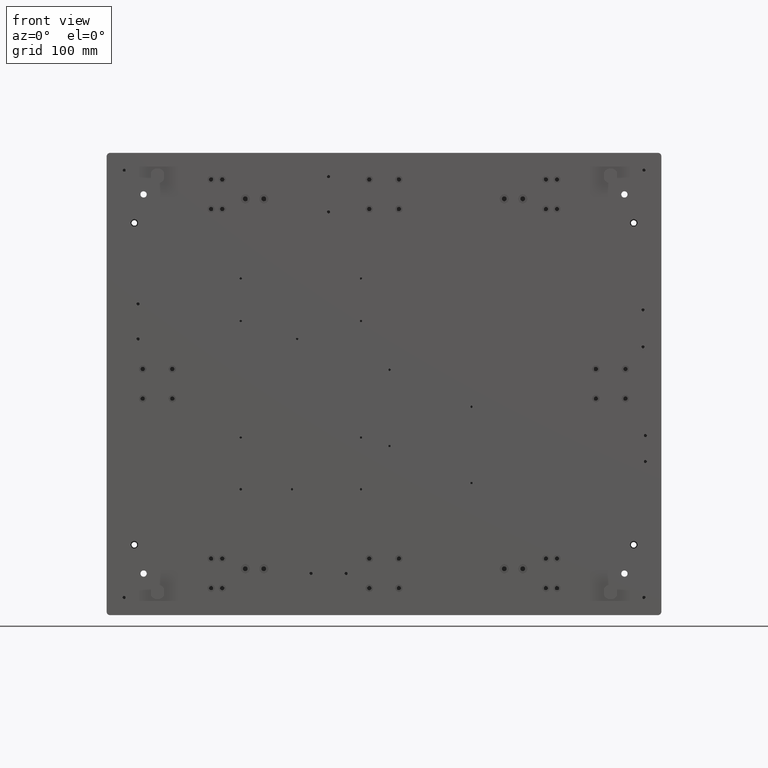
[diagram: clean part render]
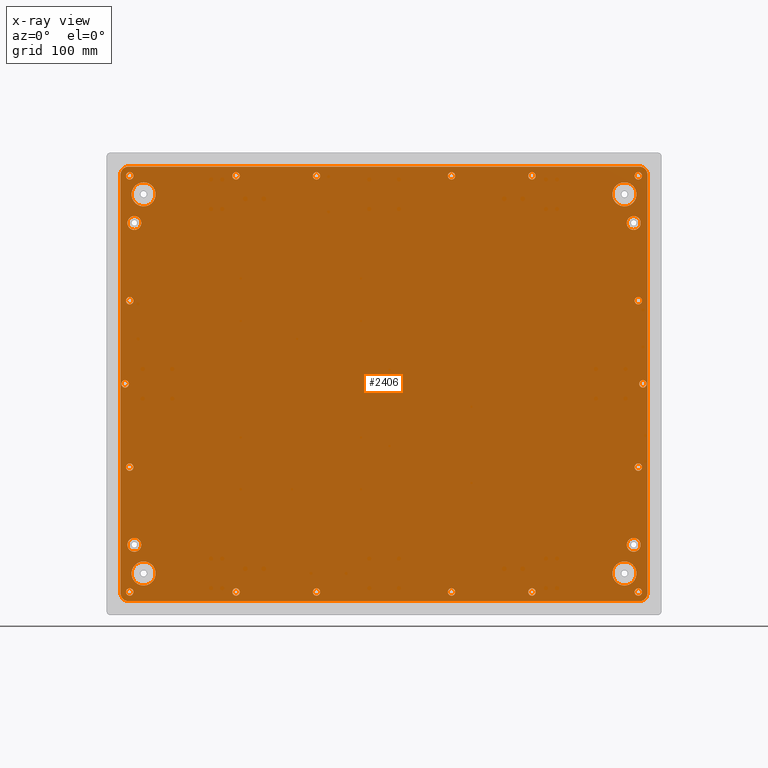
[diagram: x-ray — body ghosted, one internal face saturated and labeled with its STEP entity id]
A machine part, front view, then the same camera in x-ray: the body is ghosted and one INTERNAL B-rep face — a face not visible from any outside direction — is saturated and labeled: STEP entity #2406.
In plain terms, the highlighted planar face has unit normal (0, 1, 0).
Its self-contained STEP definition (entity closure, byte-faithful):
#20 = EDGE_CURVE ( 'NONE', #4406, #4406, #38545, .T. ) ;
#292 = DIRECTION ( 'NONE',  ( 0.000000000000000000, 0.000000000000000000, 1.000000000000000000 ) ) ;
#304 = ORIENTED_EDGE ( 'NONE', *, *, #29205, .F. ) ;
#337 = CARTESIAN_POINT ( 'NONE',  ( 279.4512755979887402, 100.1371811005066803, 639.0000000000000000 ) ) ;
#345 = VERTEX_POINT ( 'NONE', #38688 ) ;
#633 = CARTESIAN_POINT ( 'NONE',  ( 264.4512755979887402, 100.1371811005066803, 763.0000000000002274 ) ) ;
#658 = EDGE_LOOP ( 'NONE', ( #18719 ) ) ;
#799 = CIRCLE ( 'NONE', #19146, 4.000000000000003553 ) ;
#955 = ORIENTED_EDGE ( 'NONE', *, *, #22308, .F. ) ;
#1581 = FACE_BOUND ( 'NONE', #30814, .T. ) ;
#1589 = EDGE_CURVE ( 'NONE', #13353, #13353, #15249, .T. ) ;
#1866 = VERTEX_POINT ( 'NONE', #19686 ) ;
#1921 = EDGE_CURVE ( 'NONE', #11528, #11528, #22244, .T. ) ;
#1970 = EDGE_CURVE ( 'NONE', #26587, #26587, #14082, .T. ) ;
#1980 = FACE_BOUND ( 'NONE', #27510, .T. ) ;
#2161 = AXIS2_PLACEMENT_3D ( 'NONE', #26964, #8751, #33076 ) ;
#2307 = AXIS2_PLACEMENT_3D ( 'NONE', #15782, #27850, #36173 ) ;
#2319 = CIRCLE ( 'NONE', #22567, 13.00000000000001066 ) ;
#2406 = ADVANCED_FACE ( 'NONE', ( #7336, #35039, #19415, #8134, #31673, #31479, #4348, #37616, #16449, #13479, #22581, #1980, #25554, #31873, #1581, #28704, #7536, #4738, #10499, #7932, #19605, #22779, #25954, #16645, #25766, #14078, #38021 ), #38220, .F. ) ;
#2647 = DIRECTION ( 'NONE',  ( 0.000000000000000000, 0.000000000000000000, 1.000000000000000000 ) ) ;
#2733 = EDGE_CURVE ( 'NONE', #19870, #19870, #15740, .T. ) ;
#2846 = DIRECTION ( 'NONE',  ( 0.000000000000000000, -1.000000000000000000, 0.000000000000000000 ) ) ;
#2868 = DIRECTION ( 'NONE',  ( 0.000000000000000000, -1.000000000000000000, 0.000000000000000000 ) ) ;
#3297 = DIRECTION ( 'NONE',  ( 0.000000000000000000, 0.000000000000000000, 1.000000000000000000 ) ) ;
#3332 = DIRECTION ( 'NONE',  ( 0.000000000000000000, 0.000000000000000000, 1.000000000000000000 ) ) ;
#3558 = EDGE_CURVE ( 'NONE', #26773, #26773, #25265, .T. ) ;
#4115 = DIRECTION ( 'NONE',  ( 0.000000000000000000, 0.000000000000000000, 1.000000000000000000 ) ) ;
#4252 = EDGE_CURVE ( 'NONE', #24981, #24981, #14550, .T. ) ;
#4348 = FACE_BOUND ( 'NONE', #21579, .T. ) ;
#4406 = VERTEX_POINT ( 'NONE', #25425 ) ;
#4449 = ORIENTED_EDGE ( 'NONE', *, *, #1589, .F. ) ;
#4498 = DIRECTION ( 'NONE',  ( 0.000000000000000000, 0.000000000000000000, 1.000000000000000000 ) ) ;
#4516 = EDGE_LOOP ( 'NONE', ( #16558 ) ) ;
#4548 = AXIS2_PLACEMENT_3D ( 'NONE', #35288, #26001, #23024 ) ;
#4574 = AXIS2_PLACEMENT_3D ( 'NONE', #28912, #37825, #7732 ) ;
#4699 = DIRECTION ( 'NONE',  ( 0.000000000000000000, -1.000000000000000000, 0.000000000000000000 ) ) ;
#4738 = FACE_BOUND ( 'NONE', #12816, .T. ) ;
#4930 = CIRCLE ( 'NONE', #20735, 4.000000000000003553 ) ;
#5123 = CIRCLE ( 'NONE', #38666, 7.499999999999951150 ) ;
#5170 = AXIS2_PLACEMENT_3D ( 'NONE', #13741, #20431, #11136 ) ;
#5479 = VERTEX_POINT ( 'NONE', #34947 ) ;
#5512 = DIRECTION ( 'NONE',  ( -1.000000000000000000, -0.000000000000000000, 0.000000000000000000 ) ) ;
#5532 = AXIS2_PLACEMENT_3D ( 'NONE', #23943, #11270, #7923 ) ;
#5536 = VERTEX_POINT ( 'NONE', #29690 ) ;
#5581 = CARTESIAN_POINT ( 'NONE',  ( 284.4512755979888539, 100.1371811005066803, 549.0000000000000000 ) ) ;
#5734 = EDGE_CURVE ( 'NONE', #34211, #19443, #21656, .T. ) ;
#5986 = EDGE_LOOP ( 'NONE', ( #38868 ) ) ;
#6003 = AXIS2_PLACEMENT_3D ( 'NONE', #36724, #2868, #292 ) ;
#6228 = DIRECTION ( 'NONE',  ( 0.000000000000000000, -1.000000000000000000, 0.000000000000000000 ) ) ;
#6229 = CIRCLE ( 'NONE', #13855, 8.800000000000029132 ) ;
#6385 = EDGE_LOOP ( 'NONE', ( #26109 ) ) ;
#6465 = DIRECTION ( 'NONE',  ( 0.000000000000000000, 0.000000000000000000, 1.000000000000000000 ) ) ;
#6635 = EDGE_CURVE ( 'NONE', #14855, #14855, #799, .T. ) ;
#6994 = EDGE_CURVE ( 'NONE', #5536, #5536, #15386, .T. ) ;
#7004 = EDGE_CURVE ( 'NONE', #24362, #24362, #10322, .T. ) ;
#7023 = DIRECTION ( 'NONE',  ( 0.000000000000000000, 0.000000000000000000, 1.000000000000000000 ) ) ;
#7161 = VERTEX_POINT ( 'NONE', #37451 ) ;
#7312 = CARTESIAN_POINT ( 'NONE',  ( -68.54872440201116035, 100.1371811005066803, 774.0000000000000000 ) ) ;
#7336 = FACE_OUTER_BOUND ( 'NONE', #34441, .T. ) ;
#7377 = DIRECTION ( 'NONE',  ( 0.000000000000000000, -1.000000000000000000, 0.000000000000000000 ) ) ;
#7437 = EDGE_LOOP ( 'NONE', ( #27326 ) ) ;
#7536 = FACE_BOUND ( 'NONE', #6385, .T. ) ;
#7593 = CARTESIAN_POINT ( 'NONE',  ( 280.6512755979887288, 100.1371811005066803, 771.2000000000000455 ) ) ;
#7732 = DIRECTION ( 'NONE',  ( 0.000000000000000000, -0.000000000000000000, 1.000000000000000000 ) ) ;
#7923 = DIRECTION ( 'NONE',  ( 0.000000000000000000, 0.000000000000000000, -1.000000000000000000 ) ) ;
#7932 = FACE_BOUND ( 'NONE', #29272, .T. ) ;
#8134 = FACE_BOUND ( 'NONE', #7437, .T. ) ;
#8226 = EDGE_LOOP ( 'NONE', ( #16764 ) ) ;
#8423 = CARTESIAN_POINT ( 'NONE',  ( 274.4512755979888539, 100.1371811005066803, 719.0000000000001137 ) ) ;
#8569 = DIRECTION ( 'NONE',  ( 0.000000000000000000, -0.000000000000000000, 1.000000000000000000 ) ) ;
#8678 = VERTEX_POINT ( 'NONE', #38976 ) ;
#8708 = VERTEX_POINT ( 'NONE', #24345 ) ;
#8751 = DIRECTION ( 'NONE',  ( 0.000000000000000000, -1.000000000000000000, 0.000000000000000000 ) ) ;
#8757 = AXIS2_PLACEMENT_3D ( 'NONE', #15333, #6228, #18308 ) ;
#8772 = EDGE_LOOP ( 'NONE', ( #4449 ) ) ;
#8817 = CARTESIAN_POINT ( 'NONE',  ( -270.5487244020112030, 100.1371811005066803, 455.0000000000001137 ) ) ;
#8948 = AXIS2_PLACEMENT_3D ( 'NONE', #13833, #37557, #34598 ) ;
#9004 = CARTESIAN_POINT ( 'NONE',  ( -271.7487244020111348, 100.1371811005066803, 310.0000000000001137 ) ) ;
#9249 = DIRECTION ( 'NONE',  ( 0.000000000000000000, -1.000000000000000000, 0.000000000000000000 ) ) ;
#9411 = AXIS2_PLACEMENT_3D ( 'NONE', #13434, #32229, #19956 ) ;
#9502 = CARTESIAN_POINT ( 'NONE',  ( -275.5487244020112030, 100.1371811005066803, 549.0000000000001137 ) ) ;
#9898 = CARTESIAN_POINT ( 'NONE',  ( 164.4512755979887686, 100.1371811005066803, 770.0000000000001137 ) ) ;
#10167 = VECTOR ( 'NONE', #10305, 1000.000000000000000 ) ;
#10277 = VERTEX_POINT ( 'NONE', #25528 ) ;
#10305 = DIRECTION ( 'NONE',  ( 1.000000000000000000, 0.000000000000000000, -0.000000000000000000 ) ) ;
#10322 = CIRCLE ( 'NONE', #36859, 4.000000000000003553 ) ;
#10331 = CARTESIAN_POINT ( 'NONE',  ( 274.4512755979888539, 100.1371811005066803, 726.5000000000000000 ) ) ;
#10414 = CIRCLE ( 'NONE', #6003, 4.000000000000003553 ) ;
#10499 = FACE_BOUND ( 'NONE', #28861, .T. ) ;
#10530 = DIRECTION ( 'NONE',  ( 0.000000000000000000, 0.000000000000000000, 1.000000000000000000 ) ) ;
#10807 = ORIENTED_EDGE ( 'NONE', *, *, #7004, .F. ) ;
#10955 = CARTESIAN_POINT ( 'NONE',  ( -280.5487244020111461, 100.1371811005066803, 771.2000000000000455 ) ) ;
#11125 = ORIENTED_EDGE ( 'NONE', *, *, #20, .F. ) ;
#11136 = DIRECTION ( 'NONE',  ( 0.000000000000000000, 0.000000000000000000, 1.000000000000000000 ) ) ;
#11270 = DIRECTION ( 'NONE',  ( 0.000000000000000000, 1.000000000000000000, 0.000000000000000000 ) ) ;
#11372 = AXIS2_PLACEMENT_3D ( 'NONE', #17902, #14932, #24046 ) ;
#11518 = EDGE_CURVE ( 'NONE', #37895, #25456, #35492, .T. ) ;
#11528 = VERTEX_POINT ( 'NONE', #16916 ) ;
#11746 = DIRECTION ( 'NONE',  ( 0.000000000000000000, -1.000000000000000000, 0.000000000000000000 ) ) ;
#11776 = EDGE_CURVE ( 'NONE', #24113, #24113, #2319, .T. ) ;
#11958 = CIRCLE ( 'NONE', #22074, 8.799999999999974065 ) ;
#12039 = ORIENTED_EDGE ( 'NONE', *, *, #24014, .F. ) ;
#12317 = EDGE_CURVE ( 'NONE', #22040, #37895, #20121, .T. ) ;
#12816 = EDGE_LOOP ( 'NONE', ( #34964 ) ) ;
#13090 = EDGE_CURVE ( 'NONE', #25456, #5479, #6229, .T. ) ;
#13166 = CARTESIAN_POINT ( 'NONE',  ( 274.4512755979887970, 100.1371811005066803, 371.0000000000001705 ) ) ;
#13178 = AXIS2_PLACEMENT_3D ( 'NONE', #29774, #2846, #2647 ) ;
#13353 = VERTEX_POINT ( 'NONE', #5581 ) ;
#13434 = CARTESIAN_POINT ( 'NONE',  ( 164.4512755979887402, 100.1371811005066803, 320.0000000000000000 ) ) ;
#13479 = FACE_BOUND ( 'NONE', #35078, .T. ) ;
#13640 = CARTESIAN_POINT ( 'NONE',  ( 279.4512755979887970, 100.1371811005066803, 320.0000000000000000 ) ) ;
#13683 = EDGE_CURVE ( 'NONE', #19443, #19135, #11958, .T. ) ;
#13732 = CARTESIAN_POINT ( 'NONE',  ( -255.5487244020111461, 100.1371811005066803, 750.0000000000003411 ) ) ;
#13741 = CARTESIAN_POINT ( 'NONE',  ( 279.4512755979887970, 100.1371811005066803, 769.9999999999998863 ) ) ;
#13833 = CARTESIAN_POINT ( 'NONE',  ( 284.4512755979888539, 100.1371811005066803, 545.0000000000000000 ) ) ;
#13855 = AXIS2_PLACEMENT_3D ( 'NONE', #19111, #34341, #31168 ) ;
#14078 = FACE_BOUND ( 'NONE', #8226, .T. ) ;
#14082 = CIRCLE ( 'NONE', #4548, 13.00000000000001066 ) ;
#14175 = ORIENTED_EDGE ( 'NONE', *, *, #3558, .F. ) ;
#14270 = CARTESIAN_POINT ( 'NONE',  ( 280.6512755979885583, 100.1371811005066803, 318.8000000000000682 ) ) ;
#14340 = CARTESIAN_POINT ( 'NONE',  ( -255.5487244020112598, 100.1371811005066803, 353.0000000000002274 ) ) ;
#14348 = EDGE_LOOP ( 'NONE', ( #16013 ) ) ;
#14475 = EDGE_LOOP ( 'NONE', ( #35315 ) ) ;
#14550 = CIRCLE ( 'NONE', #11372, 4.000000000000003553 ) ;
#14855 = VERTEX_POINT ( 'NONE', #32666 ) ;
#14899 = CARTESIAN_POINT ( 'NONE',  ( 279.4512755979887402, 100.1371811005066803, 459.0000000000000568 ) ) ;
#14932 = DIRECTION ( 'NONE',  ( 0.000000000000000000, -1.000000000000000000, 0.000000000000000000 ) ) ;
#15080 = EDGE_CURVE ( 'NONE', #5479, #345, #34455, .T. ) ;
#15190 = DIRECTION ( 'NONE',  ( 0.000000000000000000, -1.000000000000000000, 0.000000000000000000 ) ) ;
#15249 = CIRCLE ( 'NONE', #8948, 4.000000000000003553 ) ;
#15333 = CARTESIAN_POINT ( 'NONE',  ( -68.54872440201116035, 100.1371811005066803, 770.0000000000000000 ) ) ;
#15386 = CIRCLE ( 'NONE', #19802, 4.000000000000003553 ) ;
#15539 = ORIENTED_EDGE ( 'NONE', *, *, #13090, .F. ) ;
#15542 = EDGE_CURVE ( 'NONE', #36324, #36324, #24761, .T. ) ;
#15701 = VERTEX_POINT ( 'NONE', #633 ) ;
#15740 = CIRCLE ( 'NONE', #9411, 4.000000000000003553 ) ;
#15782 = CARTESIAN_POINT ( 'NONE',  ( 264.4512755979887402, 100.1371811005066803, 750.0000000000002274 ) ) ;
#15803 = AXIS2_PLACEMENT_3D ( 'NONE', #9898, #21587, #22357 ) ;
#15915 = AXIS2_PLACEMENT_3D ( 'NONE', #34727, #31751, #28393 ) ;
#15948 = DIRECTION ( 'NONE',  ( 0.000000000000000000, -1.000000000000000000, 0.000000000000000000 ) ) ;
#16013 = ORIENTED_EDGE ( 'NONE', *, *, #25291, .F. ) ;
#16114 = DIRECTION ( 'NONE',  ( -0.000000000000000000, 0.000000000000000000, -1.000000000000000000 ) ) ;
#16203 = DIRECTION ( 'NONE',  ( 0.000000000000000000, 0.000000000000000000, 1.000000000000000000 ) ) ;
#16211 = DIRECTION ( 'NONE',  ( 0.000000000000000000, -1.000000000000000000, 0.000000000000000000 ) ) ;
#16252 = AXIS2_PLACEMENT_3D ( 'NONE', #30797, #9249, #35971 ) ;
#16314 = EDGE_LOOP ( 'NONE', ( #17409 ) ) ;
#16449 = FACE_BOUND ( 'NONE', #5986, .T. ) ;
#16477 = CARTESIAN_POINT ( 'NONE',  ( -270.5487244020112598, 100.1371811005066803, 320.0000000000000568 ) ) ;
#16501 = ORIENTED_EDGE ( 'NONE', *, *, #4252, .F. ) ;
#16542 = ORIENTED_EDGE ( 'NONE', *, *, #1921, .F. ) ;
#16558 = ORIENTED_EDGE ( 'NONE', *, *, #35736, .F. ) ;
#16645 = FACE_BOUND ( 'NONE', #27770, .T. ) ;
#16705 = DIRECTION ( 'NONE',  ( 0.000000000000000000, 0.000000000000000000, -1.000000000000000000 ) ) ;
#16764 = ORIENTED_EDGE ( 'NONE', *, *, #36003, .F. ) ;
#16866 = EDGE_CURVE ( 'NONE', #18715, #18715, #5123, .T. ) ;
#16916 = CARTESIAN_POINT ( 'NONE',  ( 279.4512755979887970, 100.1371811005066803, 773.9999999999998863 ) ) ;
#17409 = ORIENTED_EDGE ( 'NONE', *, *, #38250, .F. ) ;
#17902 = CARTESIAN_POINT ( 'NONE',  ( -270.5487244020111461, 100.1371811005066803, 770.0000000000000000 ) ) ;
#18308 = DIRECTION ( 'NONE',  ( 0.000000000000000000, 0.000000000000000000, 1.000000000000000000 ) ) ;
#18360 = CARTESIAN_POINT ( 'NONE',  ( -275.5487244020112030, 100.1371811005066803, 545.0000000000001137 ) ) ;
#18674 = AXIS2_PLACEMENT_3D ( 'NONE', #8423, #29593, #32195 ) ;
#18715 = VERTEX_POINT ( 'NONE', #30963 ) ;
#18719 = ORIENTED_EDGE ( 'NONE', *, *, #6994, .F. ) ;
#19089 = EDGE_LOOP ( 'NONE', ( #12039 ) ) ;
#19102 = VERTEX_POINT ( 'NONE', #31160 ) ;
#19111 = CARTESIAN_POINT ( 'NONE',  ( -271.7487244020111348, 100.1371811005066803, 771.2000000000000455 ) ) ;
#19135 = VERTEX_POINT ( 'NONE', #31024 ) ;
#19146 = AXIS2_PLACEMENT_3D ( 'NONE', #19964, #4699, #4115 ) ;
#19415 = FACE_BOUND ( 'NONE', #28808, .T. ) ;
#19443 = VERTEX_POINT ( 'NONE', #25403 ) ;
#19497 = CIRCLE ( 'NONE', #32142, 4.000000000000003553 ) ;
#19605 = FACE_BOUND ( 'NONE', #29046, .T. ) ;
#19663 = DIRECTION ( 'NONE',  ( 0.000000000000000000, 1.000000000000000000, 0.000000000000000000 ) ) ;
#19686 = CARTESIAN_POINT ( 'NONE',  ( 77.45127559798876860, 100.1371811005066803, 774.0000000000000000 ) ) ;
#19802 = AXIS2_PLACEMENT_3D ( 'NONE', #30611, #15190, #6465 ) ;
#19839 = VERTEX_POINT ( 'NONE', #10331 ) ;
#19870 = VERTEX_POINT ( 'NONE', #35682 ) ;
#19956 = DIRECTION ( 'NONE',  ( 0.000000000000000000, 0.000000000000000000, 1.000000000000000000 ) ) ;
#19964 = CARTESIAN_POINT ( 'NONE',  ( -270.5487244020112030, 100.1371811005066803, 635.0000000000000000 ) ) ;
#20121 = CIRCLE ( 'NONE', #5532, 8.799999999999974065 ) ;
#20431 = DIRECTION ( 'NONE',  ( 0.000000000000000000, -1.000000000000000000, 0.000000000000000000 ) ) ;
#20572 = DIRECTION ( 'NONE',  ( -1.892425610156522338E-14, 0.000000000000000000, -1.000000000000000000 ) ) ;
#20735 = AXIS2_PLACEMENT_3D ( 'NONE', #8817, #30188, #20888 ) ;
#20884 = ORIENTED_EDGE ( 'NONE', *, *, #28410, .F. ) ;
#20888 = DIRECTION ( 'NONE',  ( 0.000000000000000000, 0.000000000000000000, 1.000000000000000000 ) ) ;
#21412 = EDGE_CURVE ( 'NONE', #10277, #10277, #38219, .T. ) ;
#21468 = ORIENTED_EDGE ( 'NONE', *, *, #11518, .F. ) ;
#21515 = ORIENTED_EDGE ( 'NONE', *, *, #6635, .F. ) ;
#21579 = EDGE_LOOP ( 'NONE', ( #304 ) ) ;
#21587 = DIRECTION ( 'NONE',  ( 0.000000000000000000, -1.000000000000000000, 0.000000000000000000 ) ) ;
#21656 = LINE ( 'NONE', #36510, #37430 ) ;
#22040 = VERTEX_POINT ( 'NONE', #9004 ) ;
#22052 = EDGE_CURVE ( 'NONE', #28097, #28097, #25189, .T. ) ;
#22074 = AXIS2_PLACEMENT_3D ( 'NONE', #14270, #23552, #20572 ) ;
#22121 = EDGE_CURVE ( 'NONE', #34228, #34228, #25849, .T. ) ;
#22159 = CARTESIAN_POINT ( 'NONE',  ( 264.4512755979887402, 100.1371811005066803, 353.0000000000001705 ) ) ;
#22244 = CIRCLE ( 'NONE', #5170, 4.000000000000003553 ) ;
#22248 = DIRECTION ( 'NONE',  ( 0.000000000000000000, 0.000000000000000000, 1.000000000000000000 ) ) ;
#22308 = EDGE_CURVE ( 'NONE', #345, #34211, #32626, .T. ) ;
#22357 = DIRECTION ( 'NONE',  ( 0.000000000000000000, 0.000000000000000000, 1.000000000000000000 ) ) ;
#22567 = AXIS2_PLACEMENT_3D ( 'NONE', #13732, #7377, #22818 ) ;
#22581 = FACE_BOUND ( 'NONE', #32036, .T. ) ;
#22779 = FACE_BOUND ( 'NONE', #25519, .T. ) ;
#22818 = DIRECTION ( 'NONE',  ( 0.000000000000000000, 0.000000000000000000, 1.000000000000000000 ) ) ;
#22970 = LINE ( 'NONE', #35034, #23822 ) ;
#23024 = DIRECTION ( 'NONE',  ( 0.000000000000000000, 0.000000000000000000, 1.000000000000000000 ) ) ;
#23394 = CARTESIAN_POINT ( 'NONE',  ( -280.5487244020111461, 100.1371811005066803, 318.8000000000001819 ) ) ;
#23487 = CARTESIAN_POINT ( 'NONE',  ( -155.5487244020112598, 100.1371811005066803, 324.0000000000000568 ) ) ;
#23517 = EDGE_LOOP ( 'NONE', ( #35912 ) ) ;
#23552 = DIRECTION ( 'NONE',  ( 0.000000000000000000, 1.000000000000000000, 0.000000000000000000 ) ) ;
#23683 = AXIS2_PLACEMENT_3D ( 'NONE', #13640, #25506, #4498 ) ;
#23822 = VECTOR ( 'NONE', #5512, 1000.000000000000000 ) ;
#23943 = CARTESIAN_POINT ( 'NONE',  ( -271.7487244020111348, 100.1371811005066803, 318.8000000000001819 ) ) ;
#24014 = EDGE_CURVE ( 'NONE', #8678, #8678, #4930, .T. ) ;
#24046 = DIRECTION ( 'NONE',  ( 0.000000000000000000, 0.000000000000000000, 1.000000000000000000 ) ) ;
#24113 = VERTEX_POINT ( 'NONE', #33200 ) ;
#24301 = DIRECTION ( 'NONE',  ( 0.000000000000000000, -1.000000000000000000, 0.000000000000000000 ) ) ;
#24345 = CARTESIAN_POINT ( 'NONE',  ( 164.4512755979887686, 100.1371811005066803, 774.0000000000001137 ) ) ;
#24362 = VERTEX_POINT ( 'NONE', #9502 ) ;
#24718 = CARTESIAN_POINT ( 'NONE',  ( 279.4512755979887402, 100.1371811005066803, 455.0000000000000568 ) ) ;
#24761 = CIRCLE ( 'NONE', #15915, 4.000000000000003553 ) ;
#24881 = EDGE_LOOP ( 'NONE', ( #11125 ) ) ;
#24913 = ORIENTED_EDGE ( 'NONE', *, *, #12317, .F. ) ;
#24981 = VERTEX_POINT ( 'NONE', #37049 ) ;
#25189 = CIRCLE ( 'NONE', #13178, 13.00000000000001066 ) ;
#25265 = CIRCLE ( 'NONE', #25926, 4.000000000000003553 ) ;
#25291 = EDGE_CURVE ( 'NONE', #30432, #30432, #10414, .T. ) ;
#25403 = CARTESIAN_POINT ( 'NONE',  ( 289.4512755979886833, 100.1371811005066803, 318.8000000000001251 ) ) ;
#25425 = CARTESIAN_POINT ( 'NONE',  ( -265.5487244020113167, 100.1371811005066803, 378.5000000000001137 ) ) ;
#25456 = VERTEX_POINT ( 'NONE', #28011 ) ;
#25506 = DIRECTION ( 'NONE',  ( 0.000000000000000000, -1.000000000000000000, 0.000000000000000000 ) ) ;
#25519 = EDGE_LOOP ( 'NONE', ( #10807 ) ) ;
#25528 = CARTESIAN_POINT ( 'NONE',  ( 279.4512755979887970, 100.1371811005066803, 324.0000000000000000 ) ) ;
#25554 = FACE_BOUND ( 'NONE', #8772, .T. ) ;
#25766 = FACE_BOUND ( 'NONE', #4516, .T. ) ;
#25849 = CIRCLE ( 'NONE', #8757, 4.000000000000003553 ) ;
#25926 = AXIS2_PLACEMENT_3D ( 'NONE', #24718, #33616, #16203 ) ;
#25954 = FACE_BOUND ( 'NONE', #19089, .T. ) ;
#26001 = DIRECTION ( 'NONE',  ( 0.000000000000000000, -1.000000000000000000, 0.000000000000000000 ) ) ;
#26105 = ORIENTED_EDGE ( 'NONE', *, *, #13683, .F. ) ;
#26109 = ORIENTED_EDGE ( 'NONE', *, *, #31760, .F. ) ;
#26587 = VERTEX_POINT ( 'NONE', #14340 ) ;
#26773 = VERTEX_POINT ( 'NONE', #14899 ) ;
#26964 = CARTESIAN_POINT ( 'NONE',  ( -155.5487244020112598, 100.1371811005066803, 320.0000000000000568 ) ) ;
#27326 = ORIENTED_EDGE ( 'NONE', *, *, #35477, .F. ) ;
#27510 = EDGE_LOOP ( 'NONE', ( #14175 ) ) ;
#27770 = EDGE_LOOP ( 'NONE', ( #28262 ) ) ;
#27850 = DIRECTION ( 'NONE',  ( 0.000000000000000000, -1.000000000000000000, 0.000000000000000000 ) ) ;
#28011 = CARTESIAN_POINT ( 'NONE',  ( -280.5487244020111461, 100.1371811005066803, 771.2000000000000455 ) ) ;
#28097 = VERTEX_POINT ( 'NONE', #22159 ) ;
#28198 = AXIS2_PLACEMENT_3D ( 'NONE', #7593, #19663, #16705 ) ;
#28262 = ORIENTED_EDGE ( 'NONE', *, *, #16866, .F. ) ;
#28393 = DIRECTION ( 'NONE',  ( 0.000000000000000000, 0.000000000000000000, 1.000000000000000000 ) ) ;
#28405 = CARTESIAN_POINT ( 'NONE',  ( -265.5487244020113167, 100.1371811005066803, 371.0000000000001137 ) ) ;
#28410 = EDGE_CURVE ( 'NONE', #19135, #22040, #22970, .T. ) ;
#28541 = DIRECTION ( 'NONE',  ( 0.000000000000000000, -1.000000000000000000, 0.000000000000000000 ) ) ;
#28704 = FACE_BOUND ( 'NONE', #16314, .T. ) ;
#28775 = CIRCLE ( 'NONE', #18674, 7.499999999999951150 ) ;
#28808 = EDGE_LOOP ( 'NONE', ( #34018 ) ) ;
#28861 = EDGE_LOOP ( 'NONE', ( #30028 ) ) ;
#28912 = CARTESIAN_POINT ( 'NONE',  ( -271.7487244020111348, 100.1371811005066803, 771.2000000000000455 ) ) ;
#29046 = EDGE_LOOP ( 'NONE', ( #21515 ) ) ;
#29105 = CARTESIAN_POINT ( 'NONE',  ( -270.5487244020112598, 100.1371811005066803, 324.0000000000000568 ) ) ;
#29205 = EDGE_CURVE ( 'NONE', #29605, #29605, #38241, .T. ) ;
#29272 = EDGE_LOOP ( 'NONE', ( #16501 ) ) ;
#29593 = DIRECTION ( 'NONE',  ( 0.000000000000000000, -1.000000000000000000, 0.000000000000000000 ) ) ;
#29605 = VERTEX_POINT ( 'NONE', #23487 ) ;
#29690 = CARTESIAN_POINT ( 'NONE',  ( -68.54872440201125983, 100.1371811005066803, 324.0000000000000568 ) ) ;
#29774 = CARTESIAN_POINT ( 'NONE',  ( 264.4512755979887402, 100.1371811005066803, 340.0000000000001137 ) ) ;
#29783 = EDGE_CURVE ( 'NONE', #19102, #19102, #19497, .T. ) ;
#30028 = ORIENTED_EDGE ( 'NONE', *, *, #29783, .F. ) ;
#30065 = CARTESIAN_POINT ( 'NONE',  ( -155.5487244020111746, 100.1371811005066803, 770.0000000000001137 ) ) ;
#30130 = VECTOR ( 'NONE', #8569, 1000.000000000000000 ) ;
#30188 = DIRECTION ( 'NONE',  ( 0.000000000000000000, -1.000000000000000000, 0.000000000000000000 ) ) ;
#30432 = VERTEX_POINT ( 'NONE', #337 ) ;
#30611 = CARTESIAN_POINT ( 'NONE',  ( -68.54872440201125983, 100.1371811005066803, 320.0000000000000568 ) ) ;
#30634 = AXIS2_PLACEMENT_3D ( 'NONE', #16477, #28541, #10530 ) ;
#30720 = AXIS2_PLACEMENT_3D ( 'NONE', #13166, #37104, #22248 ) ;
#30797 = CARTESIAN_POINT ( 'NONE',  ( 77.45127559798876860, 100.1371811005066803, 770.0000000000000000 ) ) ;
#30814 = EDGE_LOOP ( 'NONE', ( #16542 ) ) ;
#30866 = CARTESIAN_POINT ( 'NONE',  ( 289.4512755979887970, 100.1371811005066803, 771.2000000000000455 ) ) ;
#30963 = CARTESIAN_POINT ( 'NONE',  ( -265.5487244020112598, 100.1371811005066803, 726.5000000000000000 ) ) ;
#30968 = CIRCLE ( 'NONE', #15803, 4.000000000000003553 ) ;
#30997 = ORIENTED_EDGE ( 'NONE', *, *, #5734, .F. ) ;
#31024 = CARTESIAN_POINT ( 'NONE',  ( 280.6512755979886151, 100.1371811005066803, 310.0000000000000568 ) ) ;
#31160 = CARTESIAN_POINT ( 'NONE',  ( -155.5487244020111746, 100.1371811005066803, 774.0000000000001137 ) ) ;
#31168 = DIRECTION ( 'NONE',  ( 0.000000000000000000, 0.000000000000000000, -1.000000000000000000 ) ) ;
#31345 = CIRCLE ( 'NONE', #30720, 7.500000000000007105 ) ;
#31388 = CIRCLE ( 'NONE', #2307, 13.00000000000001066 ) ;
#31479 = FACE_BOUND ( 'NONE', #14475, .T. ) ;
#31673 = FACE_BOUND ( 'NONE', #23517, .T. ) ;
#31751 = DIRECTION ( 'NONE',  ( 0.000000000000000000, -1.000000000000000000, 0.000000000000000000 ) ) ;
#31760 = EDGE_CURVE ( 'NONE', #1866, #1866, #33305, .T. ) ;
#31873 = FACE_BOUND ( 'NONE', #14348, .T. ) ;
#31902 = EDGE_LOOP ( 'NONE', ( #37258 ) ) ;
#31923 = CIRCLE ( 'NONE', #30634, 4.000000000000003553 ) ;
#32036 = EDGE_LOOP ( 'NONE', ( #34552 ) ) ;
#32142 = AXIS2_PLACEMENT_3D ( 'NONE', #30065, #16211, #3332 ) ;
#32195 = DIRECTION ( 'NONE',  ( 0.000000000000000000, 0.000000000000000000, 1.000000000000000000 ) ) ;
#32229 = DIRECTION ( 'NONE',  ( 0.000000000000000000, -1.000000000000000000, 0.000000000000000000 ) ) ;
#32626 = CIRCLE ( 'NONE', #28198, 8.800000000000029132 ) ;
#32666 = CARTESIAN_POINT ( 'NONE',  ( -270.5487244020112030, 100.1371811005066803, 639.0000000000000000 ) ) ;
#32914 = CARTESIAN_POINT ( 'NONE',  ( -265.5487244020112598, 100.1371811005066803, 719.0000000000001137 ) ) ;
#33076 = DIRECTION ( 'NONE',  ( 0.000000000000000000, 0.000000000000000000, 1.000000000000000000 ) ) ;
#33147 = CARTESIAN_POINT ( 'NONE',  ( 77.45127559798875438, 100.1371811005066803, 324.0000000000000568 ) ) ;
#33200 = CARTESIAN_POINT ( 'NONE',  ( -255.5487244020111461, 100.1371811005066803, 763.0000000000003411 ) ) ;
#33305 = CIRCLE ( 'NONE', #16252, 4.000000000000003553 ) ;
#33320 = DIRECTION ( 'NONE',  ( 0.000000000000000000, 0.000000000000000000, 1.000000000000000000 ) ) ;
#33616 = DIRECTION ( 'NONE',  ( 0.000000000000000000, -1.000000000000000000, 0.000000000000000000 ) ) ;
#33836 = ORIENTED_EDGE ( 'NONE', *, *, #15080, .F. ) ;
#34018 = ORIENTED_EDGE ( 'NONE', *, *, #11776, .F. ) ;
#34118 = AXIS2_PLACEMENT_3D ( 'NONE', #28405, #15948, #7023 ) ;
#34211 = VERTEX_POINT ( 'NONE', #30866 ) ;
#34228 = VERTEX_POINT ( 'NONE', #7312 ) ;
#34341 = DIRECTION ( 'NONE',  ( 0.000000000000000000, 1.000000000000000000, 0.000000000000000000 ) ) ;
#34441 = EDGE_LOOP ( 'NONE', ( #21468, #24913, #20884, #26105, #30997, #955, #33836, #15539 ) ) ;
#34455 = LINE ( 'NONE', #37623, #10167 ) ;
#34552 = ORIENTED_EDGE ( 'NONE', *, *, #21412, .F. ) ;
#34598 = DIRECTION ( 'NONE',  ( 0.000000000000000000, 0.000000000000000000, 1.000000000000000000 ) ) ;
#34727 = CARTESIAN_POINT ( 'NONE',  ( 77.45127559798875438, 100.1371811005066803, 320.0000000000000568 ) ) ;
#34947 = CARTESIAN_POINT ( 'NONE',  ( -271.7487244020111348, 100.1371811005066803, 780.0000000000000000 ) ) ;
#34964 = ORIENTED_EDGE ( 'NONE', *, *, #22121, .F. ) ;
#35034 = CARTESIAN_POINT ( 'NONE',  ( -271.7487244020111348, 100.1371811005066803, 310.0000000000000568 ) ) ;
#35039 = FACE_BOUND ( 'NONE', #31902, .T. ) ;
#35043 = VERTEX_POINT ( 'NONE', #29105 ) ;
#35078 = EDGE_LOOP ( 'NONE', ( #38159 ) ) ;
#35288 = CARTESIAN_POINT ( 'NONE',  ( -255.5487244020112598, 100.1371811005066803, 340.0000000000001705 ) ) ;
#35315 = ORIENTED_EDGE ( 'NONE', *, *, #37795, .F. ) ;
#35477 = EDGE_CURVE ( 'NONE', #15701, #15701, #31388, .T. ) ;
#35492 = LINE ( 'NONE', #10955, #30130 ) ;
#35682 = CARTESIAN_POINT ( 'NONE',  ( 164.4512755979887402, 100.1371811005066803, 324.0000000000000000 ) ) ;
#35736 = EDGE_CURVE ( 'NONE', #19839, #19839, #28775, .T. ) ;
#35912 = ORIENTED_EDGE ( 'NONE', *, *, #22052, .F. ) ;
#35971 = DIRECTION ( 'NONE',  ( 0.000000000000000000, 0.000000000000000000, 1.000000000000000000 ) ) ;
#36003 = EDGE_CURVE ( 'NONE', #7161, #7161, #31345, .T. ) ;
#36173 = DIRECTION ( 'NONE',  ( 0.000000000000000000, 0.000000000000000000, 1.000000000000000000 ) ) ;
#36324 = VERTEX_POINT ( 'NONE', #33147 ) ;
#36510 = CARTESIAN_POINT ( 'NONE',  ( 289.4512755979887970, 100.1371811005066803, 771.2000000000000455 ) ) ;
#36724 = CARTESIAN_POINT ( 'NONE',  ( 279.4512755979887402, 100.1371811005066803, 635.0000000000000000 ) ) ;
#36859 = AXIS2_PLACEMENT_3D ( 'NONE', #18360, #24301, #3297 ) ;
#37049 = CARTESIAN_POINT ( 'NONE',  ( -270.5487244020111461, 100.1371811005066803, 774.0000000000000000 ) ) ;
#37104 = DIRECTION ( 'NONE',  ( 0.000000000000000000, -1.000000000000000000, 0.000000000000000000 ) ) ;
#37258 = ORIENTED_EDGE ( 'NONE', *, *, #1970, .F. ) ;
#37430 = VECTOR ( 'NONE', #16114, 1000.000000000000000 ) ;
#37451 = CARTESIAN_POINT ( 'NONE',  ( 274.4512755979887970, 100.1371811005066803, 378.5000000000001705 ) ) ;
#37557 = DIRECTION ( 'NONE',  ( 0.000000000000000000, -1.000000000000000000, 0.000000000000000000 ) ) ;
#37616 = FACE_BOUND ( 'NONE', #658, .T. ) ;
#37623 = CARTESIAN_POINT ( 'NONE',  ( -271.7487244020111348, 100.1371811005066803, 780.0000000000000000 ) ) ;
#37795 = EDGE_CURVE ( 'NONE', #35043, #35043, #31923, .T. ) ;
#37825 = DIRECTION ( 'NONE',  ( 0.000000000000000000, 1.000000000000000000, 0.000000000000000000 ) ) ;
#37895 = VERTEX_POINT ( 'NONE', #23394 ) ;
#38021 = FACE_BOUND ( 'NONE', #24881, .T. ) ;
#38159 = ORIENTED_EDGE ( 'NONE', *, *, #2733, .F. ) ;
#38220 = PLANE ( 'NONE',  #4574 ) ;
#38219 = CIRCLE ( 'NONE', #23683, 4.000000000000003553 ) ;
#38241 = CIRCLE ( 'NONE', #2161, 4.000000000000003553 ) ;
#38250 = EDGE_CURVE ( 'NONE', #8708, #8708, #30968, .T. ) ;
#38545 = CIRCLE ( 'NONE', #34118, 7.500000000000007105 ) ;
#38666 = AXIS2_PLACEMENT_3D ( 'NONE', #32914, #11746, #33320 ) ;
#38688 = CARTESIAN_POINT ( 'NONE',  ( 280.6512755979887288, 100.1371811005066803, 780.0000000000000000 ) ) ;
#38868 = ORIENTED_EDGE ( 'NONE', *, *, #15542, .F. ) ;
#38976 = CARTESIAN_POINT ( 'NONE',  ( -270.5487244020112030, 100.1371811005066803, 459.0000000000001137 ) ) ;